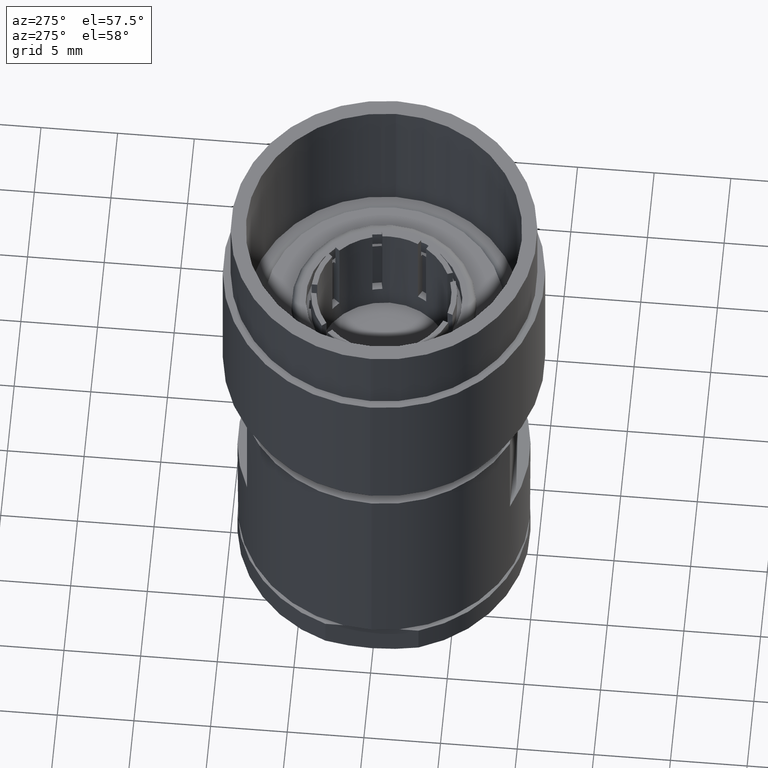
[diagram: clean part render]
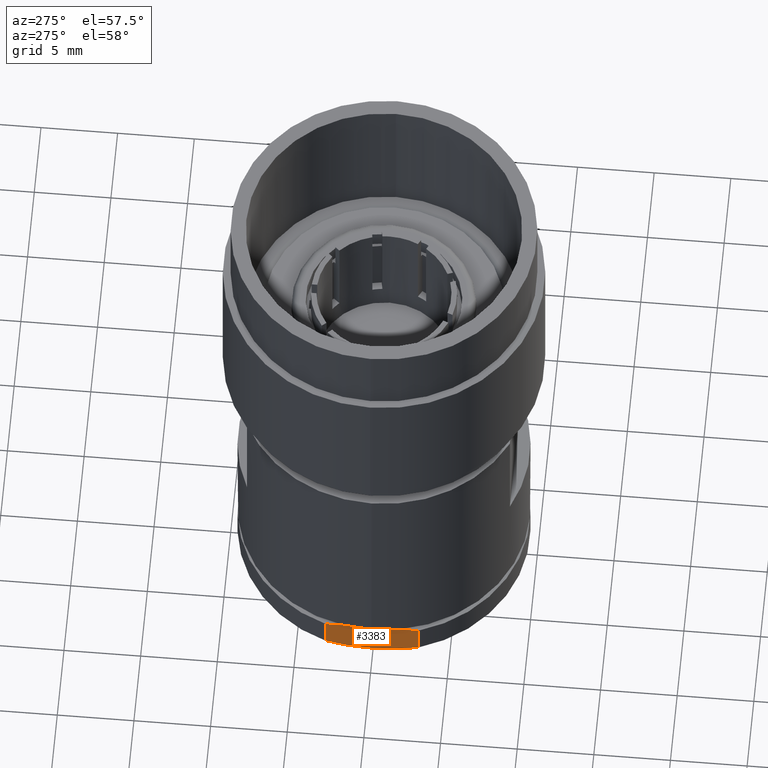
[diagram: same view with one face highlighted and labeled with its STEP entity id]
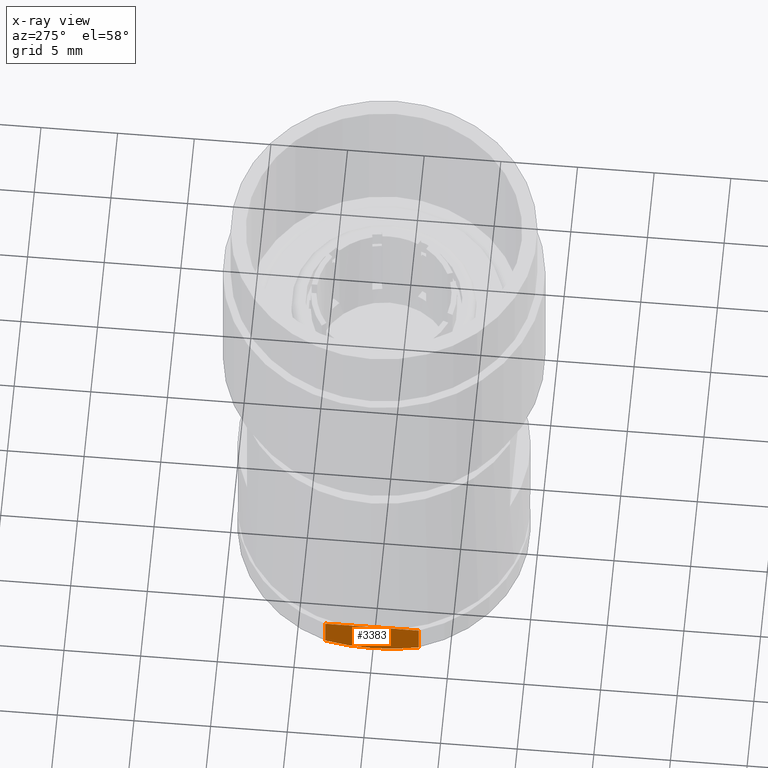
[diagram: x-ray of the same camera — body ghosted, the highlighted face saturated]
A machine part, auxiliary view. The second image highlights one B-rep face of the part: STEP entity #3383.
The next image is the same camera in x-ray: the body ghosted, the highlighted face saturated — about 0% of this face is hidden behind the body in this view.
In plain terms, the highlighted planar face has unit normal (-1, 0, 0).
Its self-contained STEP definition (entity closure, byte-faithful):
#71 = VERTEX_POINT ( 'NONE', #2636 ) ;
#150 = VERTEX_POINT ( 'NONE', #2557 ) ;
#158 = VERTEX_POINT ( 'NONE', #2549 ) ;
#190 = VERTEX_POINT ( 'NONE', #2517 ) ;
#206 = VERTEX_POINT ( 'NONE', #2501 ) ;
#590 = VECTOR ( 'NONE', #3060, 39.37007874015748100 ) ;
#593 = LINE ( 'NONE', #2734, #590 ) ;
#595 = VECTOR ( 'NONE', #3016, 39.37007874015748100 ) ;
#598 = LINE ( 'NONE', #3014, #595 ) ;
#599 = VECTOR ( 'NONE', #2993, 39.37007874015748100 ) ;
#601 = LINE ( 'NONE', #3006, #599 ) ;
#695 = FACE_OUTER_BOUND ( 'NONE', #1628, .T. ) ;
#726 = B_SPLINE_CURVE_WITH_KNOTS ( 'NONE', 3,
 ( #3018, #3120, #3115, #3114, #3113, #3112 ),
 .UNSPECIFIED., .F., .F.,
 ( 4, 2, 4 ),
 ( 0.003586308031368726500, 0.005120781197323221600, 0.006655254363277717100 ),
 .UNSPECIFIED. ) ;
#728 = B_SPLINE_CURVE_WITH_KNOTS ( 'NONE', 3,
 ( #2792, #2787, #2793, #2794, #2795, #2796, #2797, #2798 ),
 .UNSPECIFIED., .F., .F.,
 ( 4, 2, 2, 4 ),
 ( 0.006655254363277717100, 0.007422953586282006800, 0.008190652809286297400, 0.009726051255294876700 ),
 .UNSPECIFIED. ) ;
#758 = AXIS2_PLACEMENT_3D ( 'NONE', #3043, #3033, #3032 ) ;
#1036 = EDGE_CURVE ( 'NONE', #206, #158, #728, .T. ) ;
#1102 = EDGE_CURVE ( 'NONE', #71, #190, #601, .T. ) ;
#1104 = EDGE_CURVE ( 'NONE', #71, #150, #598, .T. ) ;
#1107 = EDGE_CURVE ( 'NONE', #190, #158, #593, .T. ) ;
#1110 = EDGE_CURVE ( 'NONE', #150, #206, #726, .T. ) ;
#1586 = ORIENTED_EDGE ( 'NONE', *, *, #1104, .F. ) ;
#1628 = EDGE_LOOP ( 'NONE', ( #1586, #1763, #1771, #1750, #1757 ) ) ;
#1750 = ORIENTED_EDGE ( 'NONE', *, *, #1036, .F. ) ;
#1757 = ORIENTED_EDGE ( 'NONE', *, *, #1110, .F. ) ;
#1763 = ORIENTED_EDGE ( 'NONE', *, *, #1102, .T. ) ;
#1771 = ORIENTED_EDGE ( 'NONE', *, *, #1107, .T. ) ;
#2501 = CARTESIAN_POINT ( 'NONE',  ( -0.3554274735830987300, 5.743798231115173900E-016, 0.03042747358309022500 ) ) ;
#2517 = CARTESIAN_POINT ( 'NONE',  ( -0.3554274735830987300, 0.1195671820456416900, 0.1300000000000000000 ) ) ;
#2549 = CARTESIAN_POINT ( 'NONE',  ( -0.3554274735830987300, 0.1195671820456418700, 0.05000000000000007900 ) ) ;
#2557 = CARTESIAN_POINT ( 'NONE',  ( -0.3554274735830987300, -0.1195671820456416900, 0.05000000000000002400 ) ) ;
#2636 = CARTESIAN_POINT ( 'NONE',  ( -0.3554274735830987300, -0.1195671820456416900, 0.1300000000000000000 ) ) ;
#2734 = CARTESIAN_POINT ( 'NONE',  ( -0.3554274735830987300, 0.1195671820456416900, 0.1300000000000000000 ) ) ;
#2787 = CARTESIAN_POINT ( 'NONE',  ( -0.3554274735830986700, 0.01015038954015385700, 0.03042747358309887800 ) ) ;
#2792 = CARTESIAN_POINT ( 'NONE',  ( -0.3554274735830987300, 5.743798231115173900E-016, 0.03042747358309022500 ) ) ;
#2793 = CARTESIAN_POINT ( 'NONE',  ( -0.3554274735830987300, 0.02038304452123445800, 0.03086773745701287800 ) ) ;
#2794 = CARTESIAN_POINT ( 'NONE',  ( -0.3554274735830987900, 0.04068733451083495600, 0.03260570080525199100 ) ) ;
#2795 = CARTESIAN_POINT ( 'NONE',  ( -0.3554274735830987300, 0.05074492772515307200, 0.03389711288840913800 ) ) ;
#2796 = CARTESIAN_POINT ( 'NONE',  ( -0.3554274735830987300, 0.08065748386656221300, 0.03893395358211563400 ) ) ;
#2797 = CARTESIAN_POINT ( 'NONE',  ( -0.3554274735830987300, 0.1002523236722247000, 0.04384153816714631000 ) ) ;
#2798 = CARTESIAN_POINT ( 'NONE',  ( -0.3554274735830987300, 0.1195671820456418700, 0.05000000000000007900 ) ) ;
#2993 = DIRECTION ( 'NONE',  ( -0.0000000000000000000, 1.000000000000000000, -0.0000000000000000000 ) ) ;
#3006 = CARTESIAN_POINT ( 'NONE',  ( -0.3554274735830987300, 0.1195671820456416900, 0.1300000000000000000 ) ) ;
#3014 = CARTESIAN_POINT ( 'NONE',  ( -0.3554274735830987300, -0.1195671820456416900, 0.1300000000000000000 ) ) ;
#3016 = DIRECTION ( 'NONE',  ( -0.0000000000000000000, -0.0000000000000000000, -1.000000000000000000 ) ) ;
#3018 = CARTESIAN_POINT ( 'NONE',  ( -0.3554274735830987300, -0.1195671820456416900, 0.05000000000000002400 ) ) ;
#3032 = DIRECTION ( 'NONE',  ( 0.0000000000000000000, 0.0000000000000000000, 1.000000000000000000 ) ) ;
#3033 = DIRECTION ( 'NONE',  ( -1.000000000000000000, 0.0000000000000000000, 0.0000000000000000000 ) ) ;
#3035 = PLANE ( 'NONE',  #758 ) ;
#3043 = CARTESIAN_POINT ( 'NONE',  ( -0.3554274735830987300, 0.1195671820456416900, 0.1300000000000000000 ) ) ;
#3060 = DIRECTION ( 'NONE',  ( -0.0000000000000000000, -0.0000000000000000000, -1.000000000000000000 ) ) ;
#3112 = CARTESIAN_POINT ( 'NONE',  ( -0.3554274735830987300, 5.743798231115173900E-016, 0.03042747358309022500 ) ) ;
#3113 = CARTESIAN_POINT ( 'NONE',  ( -0.3554274735830987300, -0.02028854518361442700, 0.03042747358309876400 ) ) ;
#3114 = CARTESIAN_POINT ( 'NONE',  ( -0.3554274735830987300, -0.04042227957148675200, 0.03217530689318824600 ) ) ;
#3115 = CARTESIAN_POINT ( 'NONE',  ( -0.3554274735830987300, -0.08040591740595023900, 0.03887546045643180300 ) ) ;
#3120 = CARTESIAN_POINT ( 'NONE',  ( -0.3554274735830987900, -0.1003081499458225600, 0.04385933814105651100 ) ) ;
#3383 = ADVANCED_FACE ( 'NONE', ( #695 ), #3035, .T. ) ;